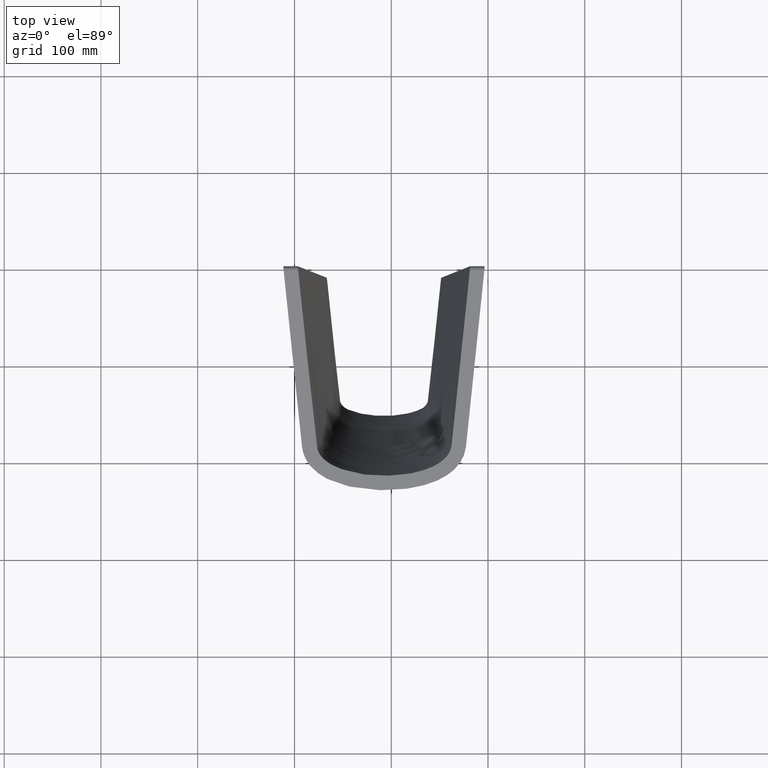
[diagram: clean part render]
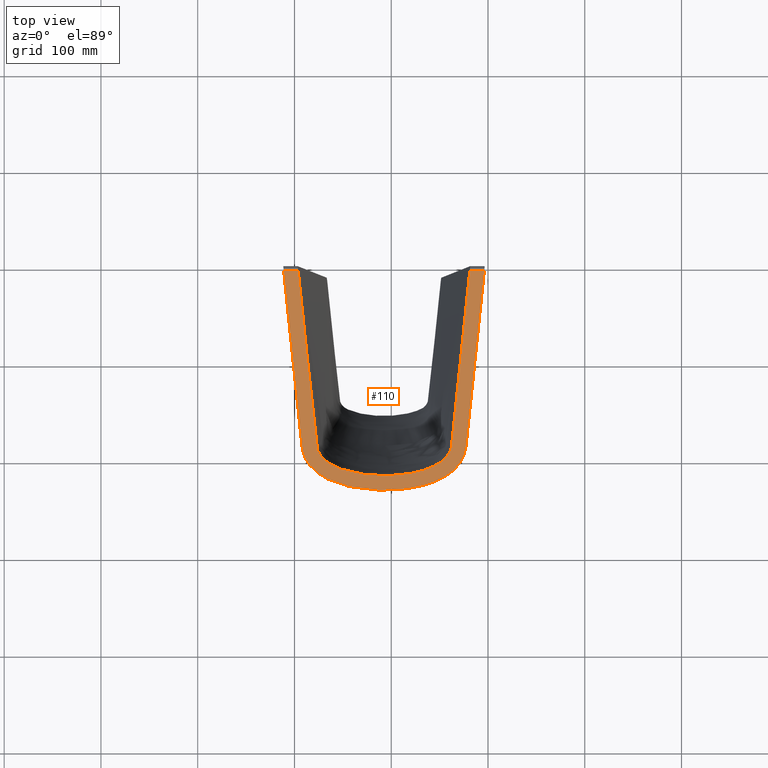
[diagram: same view with one face highlighted and labeled with its STEP entity id]
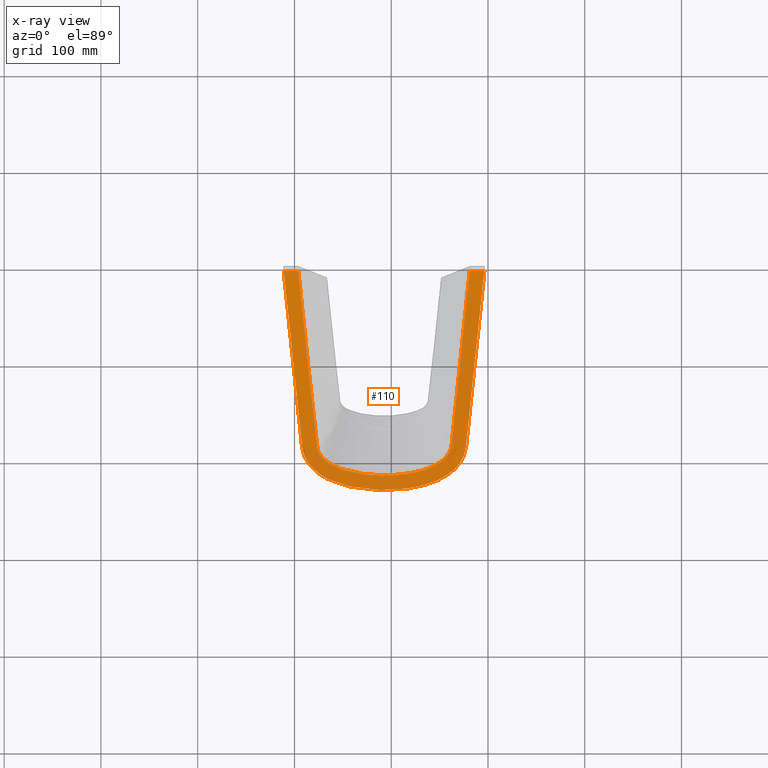
[diagram: x-ray of the same camera — body ghosted, the highlighted face saturated]
A machine part, top view. The second image highlights one B-rep face of the part: STEP entity #110.
The next image is the same camera in x-ray: the body ghosted, the highlighted face saturated — about 0% of this face is hidden behind the body in this view.
In plain terms, the highlighted planar face has unit normal (0, 0, 1).
Its self-contained STEP definition (entity closure, byte-faithful):
#110=ADVANCED_FACE('',(#124),#120,.T.);
#120=PLANE('',#265);
#124=FACE_OUTER_BOUND('',#134,.T.);
#134=EDGE_LOOP('',(#163,#164,#165,#166));
#145=LINE('',#432,#153);
#146=LINE('',#479,#154);
#153=VECTOR('',#278,1.);
#154=VECTOR('',#279,1.);
#163=ORIENTED_EDGE('',*,*,#227,.F.);
#164=ORIENTED_EDGE('',*,*,#228,.F.);
#165=ORIENTED_EDGE('',*,*,#229,.T.);
#166=ORIENTED_EDGE('',*,*,#230,.F.);
#211=VERTEX_POINT('',#430);
#212=VERTEX_POINT('',#431);
#213=VERTEX_POINT('',#433);
#214=VERTEX_POINT('',#478);
#227=EDGE_CURVE('',#211,#212,#249,.T.);
#228=EDGE_CURVE('',#213,#211,#145,.T.);
#229=EDGE_CURVE('',#213,#214,#250,.T.);
#230=EDGE_CURVE('',#212,#214,#146,.T.);
#249=B_SPLINE_CURVE_WITH_KNOTS('',3,(#389,#390,#391,#392,#393,#394,#395,
#396,#397,#398,#399,#400,#401,#402,#403,#404,#405,#406,#407,#408,#409,#410,
#411,#412,#413,#414,#415,#416,#417,#418,#419,#420,#421,#422,#423,#424,#425,
#426,#427,#428,#429),.UNSPECIFIED.,.F.,.F.,(4,1,1,1,1,1,1,1,1,1,1,1,1,1,
1,1,1,1,1,1,1,1,1,1,1,1,1,1,1,1,1,1,1,1,1,1,1,1,4),(0.,0.117269018146902,
0.244845996439435,0.260793118726002,0.276740241012568,0.284713802155851,
0.292687363299135,0.308634485585701,0.324581607872268,0.332555169015551,
0.340528730158835,0.348502291302118,0.356475852445401,0.372422974731968,
0.388370097018534,0.404317219305101,0.420264341591668,0.436211463878234,
0.468105708451367,0.499999953024501,0.531894197597634,0.563788442170767,
0.579735564457334,0.5956826867439,0.611629809030467,0.627576931317034,0.6435240536036,
0.651497614746883,0.659471175890167,0.66744473703345,0.675418298176733,
0.6913654204633,0.707312542749867,0.71528610389315,0.723259665036433,0.739206787323,
0.755153909609566,0.882730887902099,1.),.UNSPECIFIED.);
#250=B_SPLINE_CURVE_WITH_KNOTS('',3,(#434,#435,#436,#437,#438,#439,#440,
#441,#442,#443,#444,#445,#446,#447,#448,#449,#450,#451,#452,#453,#454,#455,
#456,#457,#458,#459,#460,#461,#462,#463,#464,#465,#466,#467,#468,#469,#470,
#471,#472,#473,#474,#475,#476,#477),.UNSPECIFIED.,.F.,.F.,(4,2,2,2,2,2,
2,2,2,2,2,2,2,2,2,2,2,2,2,2,2,4),(0.,0.249999999999989,0.312499999999986,
0.328124999999985,0.343749999999985,0.359374999999984,0.374999999999983,
0.406249999999983,0.437499999999983,0.468749999999982,0.499999999999982,
0.531249999999981,0.562499999999981,0.593749999999981,0.62499999999998,
0.640624999999981,0.648437499999981,0.656249999999981,0.671874999999981,
0.687499999999982,0.749999999999986,1.),.UNSPECIFIED.);
#265=AXIS2_PLACEMENT_3D('',#480,#280,#281);
#278=DIRECTION('',(1.,0.,0.));
#279=DIRECTION('',(1.,0.,0.));
#280=DIRECTION('',(0.,0.,1.));
#281=DIRECTION('',(-1.,0.,0.));
#389=CARTESIAN_POINT('',(-303.816665289561,-812.968381186065,501.311689277029));
#390=CARTESIAN_POINT('',(-305.797066494257,-831.964749389847,501.311689277029));
#391=CARTESIAN_POINT('',(-309.943871925205,-871.74166626055,501.311689277029));
#392=CARTESIAN_POINT('',(-314.692148107102,-917.288156741347,501.311689277029));
#393=CARTESIAN_POINT('',(-317.832472703473,-947.410461125823,501.311689277029));
#394=CARTESIAN_POINT('',(-318.631893661654,-955.076511028281,501.311689277029));
#395=CARTESIAN_POINT('',(-319.280744121176,-961.296210059936,501.311689277029));
#396=CARTESIAN_POINT('',(-319.935367220209,-967.572594829088,501.311689277029));
#397=CARTESIAN_POINT('',(-320.76365137594,-975.522073419032,501.311689277029));
#398=CARTESIAN_POINT('',(-321.603093461887,-983.604113835508,501.311689277029));
#399=CARTESIAN_POINT('',(-322.29344965963,-990.139559701644,501.311689277029));
#400=CARTESIAN_POINT('',(-322.764064504028,-995.082142477285,501.311689277029));
#401=CARTESIAN_POINT('',(-323.648287948868,-1000.00669383308,501.311689277029));
#402=CARTESIAN_POINT('',(-325.812469320497,-1006.37428016513,501.311689277029));
#403=CARTESIAN_POINT('',(-330.171620479801,-1013.70009372572,501.311689277029));
#404=CARTESIAN_POINT('',(-337.506158815579,-1020.95210994029,501.311689277029));
#405=CARTESIAN_POINT('',(-346.164478754233,-1026.67120173245,501.311689277029));
#406=CARTESIAN_POINT('',(-355.625838742186,-1031.07964107642,501.311689277029));
#407=CARTESIAN_POINT('',(-368.897823003358,-1035.51042746628,501.311689277029));
#408=CARTESIAN_POINT('',(-386.250561326556,-1038.78572098827,501.311689277029));
#409=CARTESIAN_POINT('',(-407.47759066905,-1039.97539924369,501.311689277029));
#410=CARTESIAN_POINT('',(-428.704528895177,-1038.78550700937,501.311689277029));
#411=CARTESIAN_POINT('',(-446.057103383826,-1035.51003889503,501.311689277029));
#412=CARTESIAN_POINT('',(-459.328758149093,-1031.07917429971,501.311689277029));
#413=CARTESIAN_POINT('',(-468.789998354001,-1026.67058926785,501.311689277029));
#414=CARTESIAN_POINT('',(-477.448062149682,-1020.95149089269,501.311689277029));
#415=CARTESIAN_POINT('',(-484.782302336922,-1013.69941488149,501.311689277029));
#416=CARTESIAN_POINT('',(-489.141278037643,-1006.3735299936,501.311689277029));
#417=CARTESIAN_POINT('',(-491.305260815341,-1000.00614760575,501.311689277029));
#418=CARTESIAN_POINT('',(-492.189394510508,-995.081584347215,501.311689277029));
#419=CARTESIAN_POINT('',(-492.659996253039,-990.139112419994,501.311689277029));
#420=CARTESIAN_POINT('',(-493.350327786041,-983.603913770102,501.311689277029));
#421=CARTESIAN_POINT('',(-494.189772942403,-975.521839346548,501.311689277029));
#422=CARTESIAN_POINT('',(-495.018048476071,-967.572442803645,501.311689277029));
#423=CARTESIAN_POINT('',(-495.672661100777,-961.296158952917,501.311689277029));
#424=CARTESIAN_POINT('',(-496.321499847793,-955.076572909652,501.311689277029));
#425=CARTESIAN_POINT('',(-497.120905993008,-947.410665404067,501.311689277029));
#426=CARTESIAN_POINT('',(-500.261163883895,-917.289000802255,501.311689277029));
#427=CARTESIAN_POINT('',(-505.009229748214,-871.744527757617,501.311689277028));
#428=CARTESIAN_POINT('',(-509.156304450629,-831.965027992108,501.311689277028));
#429=CARTESIAN_POINT('',(-511.136734701026,-812.968381186065,501.311689277027));
#430=CARTESIAN_POINT('',(-303.816665289616,-812.968381186059,501.3116892756));
#431=CARTESIAN_POINT('',(-511.136734700971,-812.968381186059,501.311689275598));
#432=CARTESIAN_POINT('',(-303.294521306207,-812.96838118606,501.31168927606));
#433=CARTESIAN_POINT('',(-318.842801808836,-812.96838118606,501.31168927606));
#434=CARTESIAN_POINT('',(-318.842801808836,-812.96838118606,501.311689276059));
#435=CARTESIAN_POINT('',(-323.4454821392,-857.118127394334,501.311689276059));
#436=CARTESIAN_POINT('',(-328.047581046581,-901.267934224109,501.311689276059));
#437=CARTESIAN_POINT('',(-333.801719987401,-956.455034769356,501.311689276059));
#438=CARTESIAN_POINT('',(-334.951687749713,-967.492544648566,501.31168927606));
#439=CARTESIAN_POINT('',(-336.392434150317,-981.289089088375,501.31168927606));
#440=CARTESIAN_POINT('',(-336.686138922843,-984.047766211344,501.31168927606));
#441=CARTESIAN_POINT('',(-337.25877905752,-989.566837850556,501.311689276059));
#442=CARTESIAN_POINT('',(-337.43401251545,-992.339389434562,501.311689276059));
#443=CARTESIAN_POINT('',(-338.541260415659,-997.795822302465,501.31168927606));
#444=CARTESIAN_POINT('',(-339.638542034497,-1000.30687680127,501.31168927606));
#445=CARTESIAN_POINT('',(-342.714202210587,-1004.92907085925,501.31168927606));
#446=CARTESIAN_POINT('',(-344.621272825919,-1006.91801756606,501.311689276059));
#447=CARTESIAN_POINT('',(-351.000978012301,-1012.23955157174,501.311689276059));
#448=CARTESIAN_POINT('',(-355.870717535403,-1014.78088172351,501.311689276059));
#449=CARTESIAN_POINT('',(-366.074941675848,-1018.8893746438,501.311689276059));
#450=CARTESIAN_POINT('',(-371.321598625921,-1020.38319940794,501.311689276059));
#451=CARTESIAN_POINT('',(-381.997213680971,-1022.66404062509,501.311689276059));
#452=CARTESIAN_POINT('',(-387.453778499442,-1023.43814906743,501.31168927606));
#453=CARTESIAN_POINT('',(-398.3376097207,-1024.41206924901,501.311689276059));
#454=CARTESIAN_POINT('',(-403.779489678599,-1024.60839100219,501.311689276059));
#455=CARTESIAN_POINT('',(-414.663187970176,-1024.49867851007,501.311689276059));
#456=CARTESIAN_POINT('',(-420.105005586866,-1024.18679945994,501.31168927606));
#457=CARTESIAN_POINT('',(-430.988566559976,-1022.95767725814,501.311689276059));
#458=CARTESIAN_POINT('',(-436.408924618642,-1022.04572418572,501.31168927606));
#459=CARTESIAN_POINT('',(-447.013184247343,-1019.43043072053,501.31168927606));
#460=CARTESIAN_POINT('',(-452.268858384178,-1017.72688673113,501.31168927606));
#461=CARTESIAN_POINT('',(-462.214275753469,-1013.12963721899,501.31168927606));
#462=CARTESIAN_POINT('',(-467.00076726603,-1010.22219288491,501.31168927606));
#463=CARTESIAN_POINT('',(-472.712295818107,-1004.31039470814,501.31168927606));
#464=CARTESIAN_POINT('',(-474.349951249778,-1002.03807824399,501.31168927606));
#465=CARTESIAN_POINT('',(-476.075752820117,-998.298931663815,501.31168927606));
#466=CARTESIAN_POINT('',(-476.536109458853,-996.974818391944,501.31168927606));
#467=CARTESIAN_POINT('',(-477.147126938329,-994.311194525912,501.31168927606));
#468=CARTESIAN_POINT('',(-477.330426370826,-992.963366674747,501.311689276059));
#469=CARTESIAN_POINT('',(-477.7928115007,-988.908414242493,501.31168927606));
#470=CARTESIAN_POINT('',(-478.043985192604,-986.197631704368,501.31168927606));
#471=CARTESIAN_POINT('',(-478.614101144311,-980.784947914335,501.31168927606));
#472=CARTESIAN_POINT('',(-478.896426404446,-978.078247707885,501.311689276059));
#473=CARTESIAN_POINT('',(-480.306900155671,-964.544597454561,501.311689276059));
#474=CARTESIAN_POINT('',(-481.437136464951,-953.717870934346,501.31168927606));
#475=CARTESIAN_POINT('',(-487.081152283981,-899.583491082212,501.31168927606));
#476=CARTESIAN_POINT('',(-491.595719163874,-856.275919859995,501.311689276059));
#477=CARTESIAN_POINT('',(-496.110598171465,-812.96838118606,501.311689276059));
#478=CARTESIAN_POINT('',(-496.110598171465,-812.96838118606,501.31168927606));
#479=CARTESIAN_POINT('',(-303.294521306207,-812.96838118606,501.31168927606));
#480=CARTESIAN_POINT('',(-303.294521306207,-807.959881256913,501.31168927606));